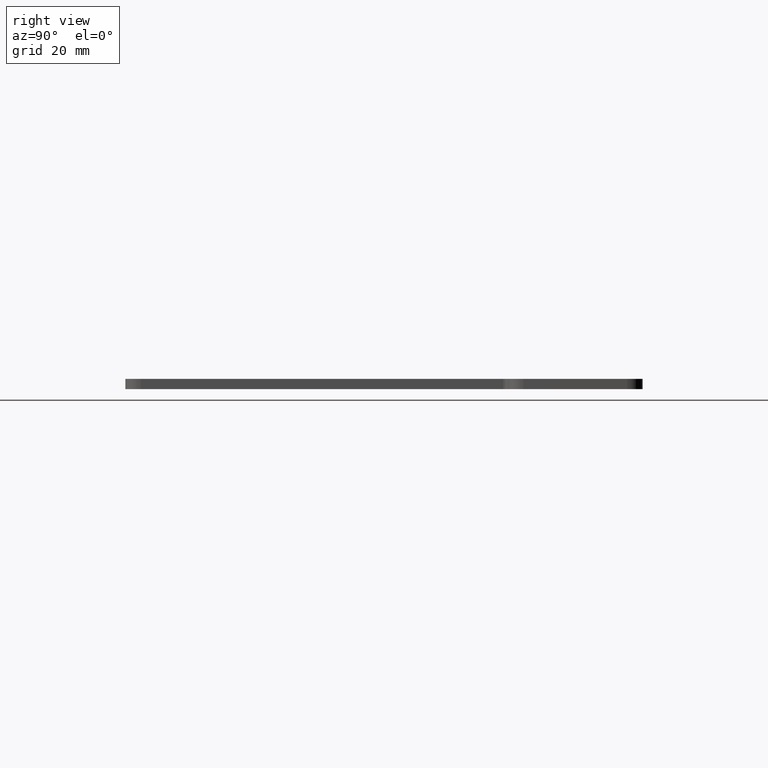
[diagram: clean part render]
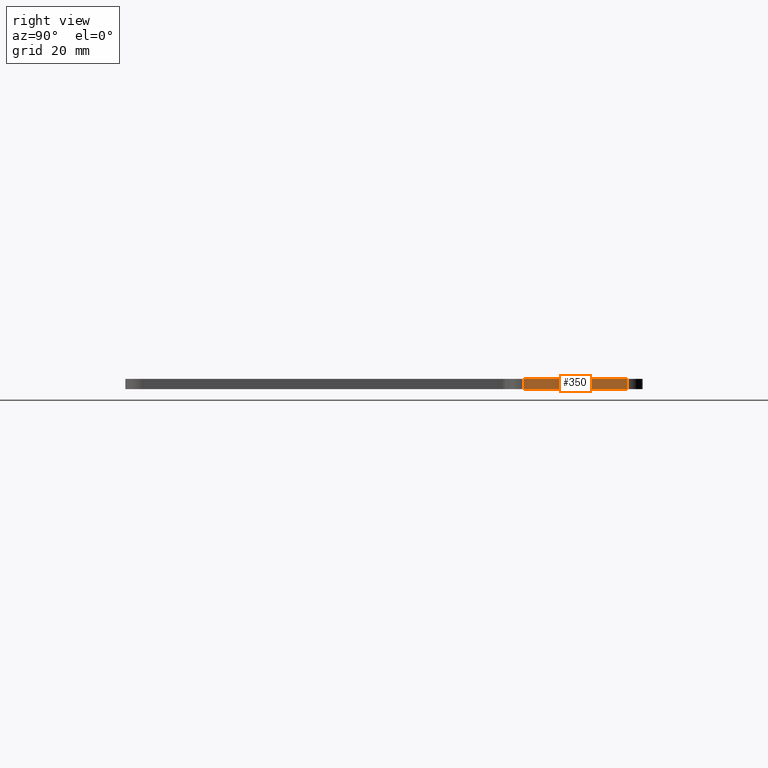
[diagram: same view with one face highlighted and labeled with its STEP entity id]
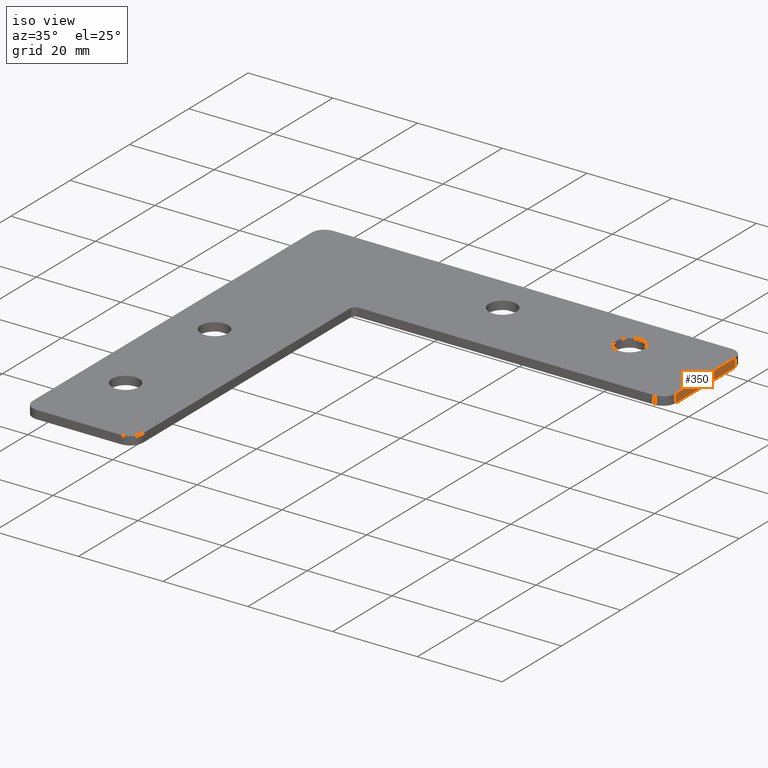
[diagram: same view with one face highlighted and labeled with its STEP entity id]
A machine part, right view. The second image highlights one B-rep face of the part: STEP entity #350.
A second angle (iso view) of the same face is appended — the face is thin or edge-on in the first view.
In plain terms, the highlighted planar face has unit normal (1, 0, 0).
Its self-contained STEP definition (entity closure, byte-faithful):
#27=PLANE('',#410);
#44=FACE_OUTER_BOUND('',#66,.T.);
#66=EDGE_LOOP('',(#295,#296,#297,#298));
#91=LINE('',#587,#119);
#96=LINE('',#604,#124);
#98=LINE('',#610,#126);
#99=LINE('',#611,#127);
#119=VECTOR('',#480,10.);
#124=VECTOR('',#501,10.);
#126=VECTOR('',#507,10.);
#127=VECTOR('',#508,10.);
#174=VERTEX_POINT('',#584);
#175=VERTEX_POINT('',#586);
#179=VERTEX_POINT('',#603);
#181=VERTEX_POINT('',#609);
#213=EDGE_CURVE('',#174,#175,#91,.T.);
#222=EDGE_CURVE('',#175,#179,#96,.T.);
#225=EDGE_CURVE('',#181,#174,#98,.T.);
#226=EDGE_CURVE('',#179,#181,#99,.T.);
#295=ORIENTED_EDGE('',*,*,#222,.F.);
#296=ORIENTED_EDGE('',*,*,#213,.F.);
#297=ORIENTED_EDGE('',*,*,#225,.F.);
#298=ORIENTED_EDGE('',*,*,#226,.F.);
#350=ADVANCED_FACE('',(#44),#27,.T.);
#410=AXIS2_PLACEMENT_3D('',#608,#505,#506);
#480=DIRECTION('',(3.41607084500048E-16,-1.,0.));
#501=DIRECTION('',(0.,0.,1.));
#505=DIRECTION('center_axis',(1.,3.41607084500048E-16,0.));
#506=DIRECTION('ref_axis',(-3.41607084500048E-16,1.,0.));
#507=DIRECTION('',(0.,0.,-1.));
#508=DIRECTION('',(-3.41607084500048E-16,1.,0.));
#584=CARTESIAN_POINT('',(37.,60.,-1.));
#586=CARTESIAN_POINT('',(37.,40.,-1.));
#587=CARTESIAN_POINT('',(37.,63.,-1.));
#603=CARTESIAN_POINT('',(37.,40.,1.));
#604=CARTESIAN_POINT('',(37.,40.,0.));
#608=CARTESIAN_POINT('Origin',(37.,37.,0.));
#609=CARTESIAN_POINT('',(37.,60.,1.));
#610=CARTESIAN_POINT('',(37.,60.,0.));
#611=CARTESIAN_POINT('',(37.,63.,1.));